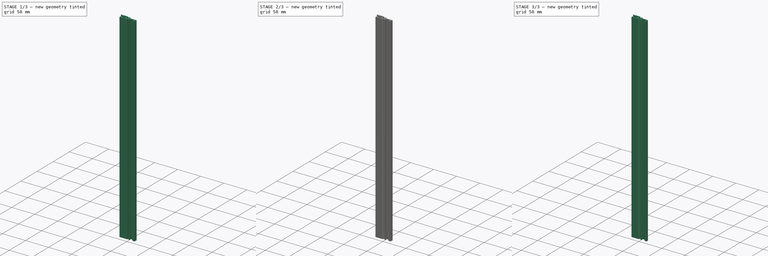
[diagram: build sequence overview — one tinted view per stage of 3, left to right]
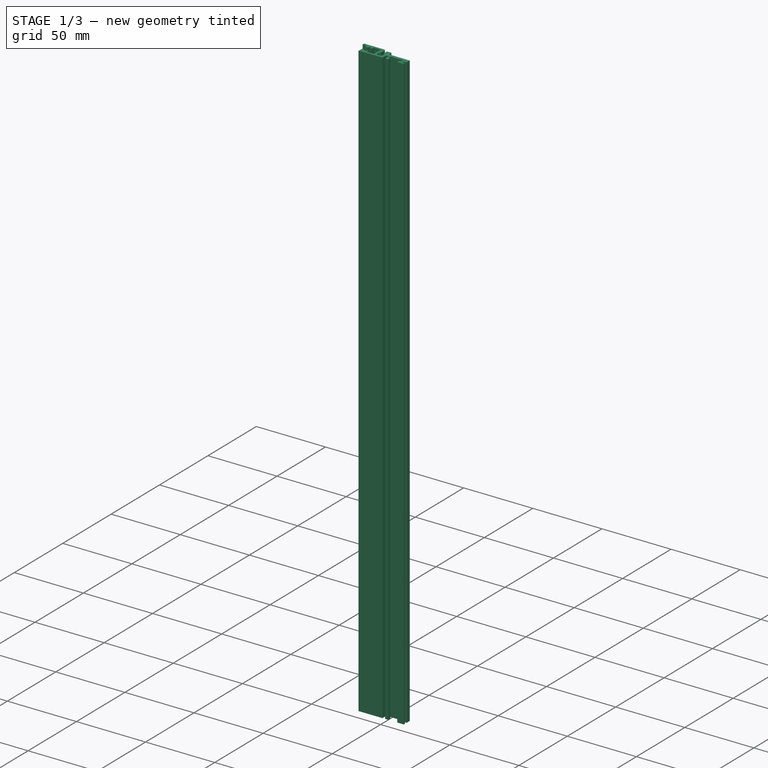
[diagram: stage 1 of 3 — iso view after this stage's code; geometry added in this stage tinted green]
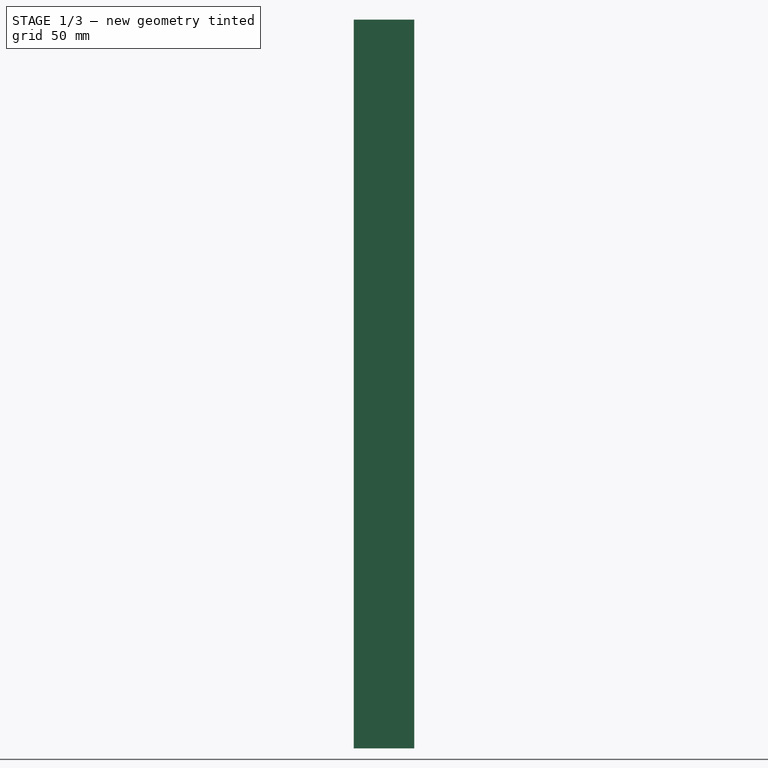
[diagram: stage 1 of 3 — front view after this stage's code; geometry added in this stage tinted green]
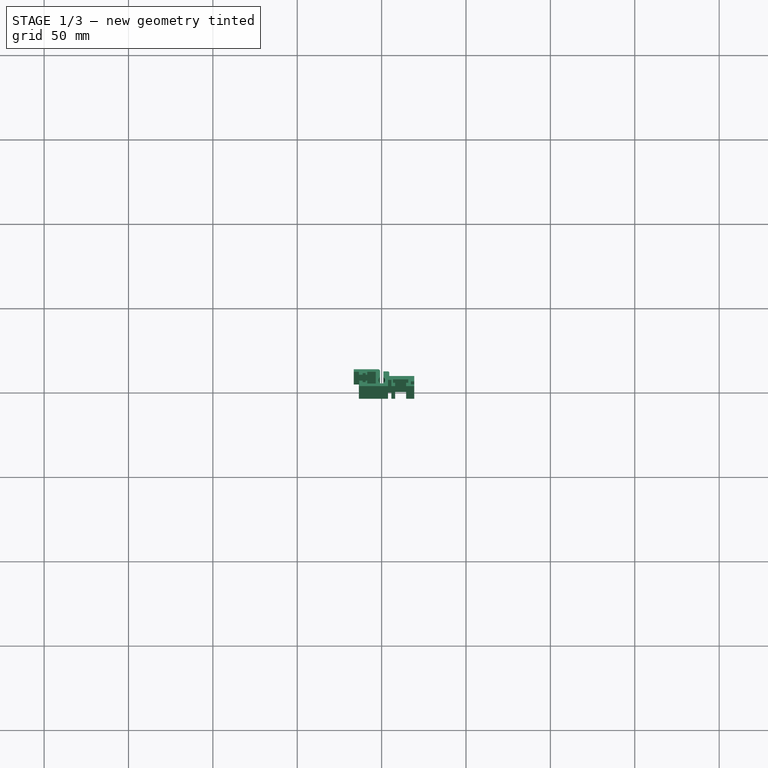
[diagram: stage 1 of 3 — top view after this stage's code; geometry added in this stage tinted green]
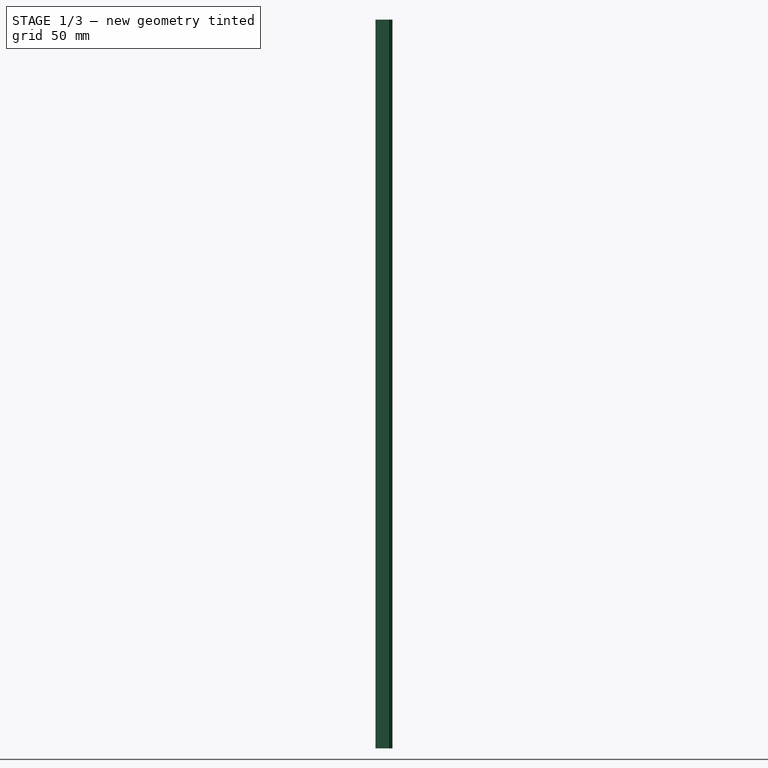
[diagram: stage 1 of 3 — right view after this stage's code; geometry added in this stage tinted green]
FCSTD DOCUMENT  (FreeCAD 0.17R13522 (Git))
Label: FISCHER BGT GB 29L
License: All rights reserved
LicenseURL: http://fr.wikipedia.org/wiki/<copyright redacted>
objects: PartDesign::Fillet×4, PartDesign::Chamfer×3, Sketcher::SketchObject×1, PartDesign::Pad×1, PartDesign::Body×1
note: 11 computed .brp shape members not serialized (recipe doc carries the construction recipe); baked Part::Feature solids carry a one-line shape summary decoded from their .brp

FEATURE [Sketcher::SketchObject] Sketch
  MapMode = 5
  Support = -> [XY_Plane]
  expr: Constraints[133] = (10 - 7) / 2
  sketch-geometry (49):
    g0: LineSegment StartX=-13.5 StartY=-3.5 StartZ=0 EndX=3.75 EndY=-3.5 EndZ=0
    g1: LineSegment StartX=3.75 StartY=-3.5 StartZ=0 EndX=3.75 EndY=0.2 EndZ=0
    g2: LineSegment StartX=3.75 StartY=0.2 StartZ=0 EndX=5.75 EndY=0.2 EndZ=0
    g3: LineSegment StartX=5.75 StartY=0.2 StartZ=0 EndX=5.75 EndY=-3.5 EndZ=0
    g4: LineSegment StartX=5.75 StartY=-3.5 StartZ=0 EndX=8 EndY=-3.5 EndZ=0
    g5: LineSegment StartX=8 StartY=-3.5 StartZ=0 EndX=8 EndY=-1.5 EndZ=0
    g6: LineSegment StartX=8 StartY=-1.5 StartZ=0 EndX=6.75 EndY=-1.5 EndZ=0
    g7: LineSegment StartX=6.75 StartY=-1.5 StartZ=0 EndX=6.75 EndY=0.5 EndZ=0
    g8: LineSegment StartX=6.75 StartY=0.5 StartZ=0 EndX=15.75 EndY=0.5 EndZ=0
    g9: LineSegment StartX=15.75 StartY=0.5 StartZ=0 EndX=15.75 EndY=-1.5 EndZ=0
    g10: LineSegment StartX=15.75 StartY=-1.5 StartZ=0 EndX=14.5 EndY=-1.5 EndZ=0
    g11: LineSegment StartX=14.5 StartY=-1.5 StartZ=0 EndX=14.5 EndY=-3.5 EndZ=0
    g12: LineSegment StartX=14.5 StartY=-3.5 StartZ=0 EndX=19.3 EndY=-3.5 EndZ=0
    g13: LineSegment StartX=19.3 StartY=-3.5 StartZ=0 EndX=19.3 EndY=-2.5 EndZ=0
    g14: LineSegment StartX=19.3 StartY=-2.5 StartZ=0 EndX=17.3 EndY=-2.5 EndZ=0
    g15: LineSegment StartX=17.3 StartY=-2.5 StartZ=0 EndX=17.3 EndY=-0.7 EndZ=0
    g16: LineSegment StartX=17.3 StartY=-0.7 StartZ=0 EndX=19.3 EndY=-0.7 EndZ=0
    g17: LineSegment StartX=19.3 StartY=-0.7 StartZ=0 EndX=19.3 EndY=2.5 EndZ=0
    g18: LineSegment StartX=19.3 StartY=2.5 StartZ=0 EndX=4.5 EndY=2.5 EndZ=0
    g19: LineSegment StartX=4.5 StartY=2.5 StartZ=0 EndX=4.5 EndY=5.25 EndZ=0
    g20: LineSegment StartX=4.5 StartY=5.25 StartZ=0 EndX=1 EndY=5.25 EndZ=0
    g21: LineSegment StartX=1 StartY=5.25 StartZ=0 EndX=1 EndY=1.73205 EndZ=0
    g22: LineSegment StartX=-1 StartY=1.73205 StartZ=0 EndX=-1 EndY=6.5 EndZ=0
    g23: LineSegment StartX=-1 StartY=6.5 StartZ=0 EndX=-16.5 EndY=6.5 EndZ=0
    g24: LineSegment StartX=-16.5 StartY=6.5 StartZ=0 EndX=-16.5 EndY=5 EndZ=0
    g25: LineSegment StartX=-16.5 StartY=5 StartZ=0 EndX=-13.5 EndY=5 EndZ=0
    g26: LineSegment StartX=-13.5 StartY=5 StartZ=0 EndX=-13.5 EndY=3.25 EndZ=0
    g27: LineSegment StartX=-13.5 StartY=3.25 StartZ=0 EndX=-11.3 EndY=3.25 EndZ=0
    g28: LineSegment StartX=-11.3 StartY=3.25 StartZ=0 EndX=-11.3 EndY=4.15 EndZ=0
    g29: LineSegment StartX=-11.3 StartY=4.15 StartZ=0 EndX=-9.5 EndY=4.15 EndZ=0
    g30: LineSegment StartX=-9.5 StartY=4.15 StartZ=0 EndX=-9.5 EndY=3.25 EndZ=0
    g31: LineSegment StartX=-9.5 StartY=3.25 StartZ=0 EndX=-8.5 EndY=3.25 EndZ=0
    g32: LineSegment StartX=-8.5 StartY=3.25 StartZ=0 EndX=-8.5 EndY=5 EndZ=0
    g33: LineSegment StartX=-8.5 StartY=5 StartZ=0 EndX=-3.5 EndY=5 EndZ=0
    g34: LineSegment StartX=-3.5 StartY=5 StartZ=0 EndX=-3.5 EndY=-2 EndZ=0
    g35: LineSegment StartX=-3.5 StartY=-2 StartZ=0 EndX=-8.5 EndY=-2 EndZ=0
    g36: LineSegment StartX=-8.5 StartY=-2 StartZ=0 EndX=-8.5 EndY=-0.25 EndZ=0
    g37: LineSegment StartX=-8.5 StartY=-0.25 StartZ=0 EndX=-9.5 EndY=-0.25 EndZ=0
    g38: LineSegment StartX=-9.5 StartY=-0.25 StartZ=0 EndX=-9.5 EndY=-1.15 EndZ=0
    g39: LineSegment StartX=-9.5 StartY=-1.15 StartZ=0 EndX=-11.3 EndY=-1.15 EndZ=0
    g40: LineSegment StartX=-11.3 StartY=-1.15 StartZ=0 EndX=-11.3 EndY=-0.25 EndZ=0
    g41: LineSegment StartX=-11.3 StartY=-0.25 StartZ=0 EndX=-13.5 EndY=-0.25 EndZ=0
    g42: LineSegment StartX=-13.5 StartY=-0.25 StartZ=0 EndX=-13.5 EndY=-0.45 EndZ=0
    g43: LineSegment StartX=-13.5 StartY=-0.45 StartZ=0 EndX=-13.3 EndY=-0.45 EndZ=0
    g44: LineSegment StartX=-13.3 StartY=-0.45 StartZ=0 EndX=-13.3 EndY=-3.3 EndZ=0
    g45: LineSegment StartX=-13.3 StartY=-3.3 StartZ=0 EndX=-13.5 EndY=-3.3 EndZ=0
    g46: LineSegment StartX=-13.5 StartY=-3.3 StartZ=0 EndX=-13.5 EndY=-3.5 EndZ=0
    g47: ArcOfCircle CenterX=0 CenterY=0 CenterZ=0 NormalX=0 NormalY=0 NormalZ=1 AngleXU=0 Radius=2 StartAngle=2.0944 EndAngle=7.33038
    g48: GeomPoint X=11.25 Y=0.5 Z=0
  constraints (147):
    c: Horizontal(g0)
    c: Coincident(g0,g1)
    c: Vertical(g1)
    c: Coincident(g1,g2)
    c: Coincident(g2,g3)
    c: Coincident(g3,g4)
    c: Horizontal(g4)
    c: Coincident(g4,g5)
    c: Coincident(g5,g6)
    c: Coincident(g6,g7)
    c: Horizontal(g8)
    c: Coincident(g8,g9)
    c: Coincident(g9,g10)
    c: Coincident(g10,g11)
    c: Vertical(g11)
    c: Coincident(g11,g12)
    c: Horizontal(g12)
    c: Coincident(g12,g13)
    c: Vertical(g13)
    c: Coincident(g13,g14)
    c: Horizontal(g14)
    c: Coincident(g14,g15)
    c: Vertical(g15)
    c: Coincident(g15,g16)
    c: Horizontal(g16)
    c: Coincident(g16,g17)
    c: Vertical(g17)
    c: Coincident(g17,g18)
    c: Coincident(g18,g19)
    c: Vertical(g19)
    c: Coincident(g19,g20)
    c: Coincident(g20,g21)
    c: Vertical(g21)
    c: Vertical(g22)
    c: Coincident(g22,g23)
    c: Horizontal(g23)
    c: Coincident(g23,g24)
    c: Vertical(g24)
    c: Coincident(g24,g25)
    c: Coincident(g25,g26)
    c: Vertical(g26)
    c: Coincident(g26,g27)
    c: Coincident(g27,g28)
    c: Coincident(g28,g29)
    c: Coincident(g29,g30)
    c: Vertical(g30)
    c: Coincident(g30,g31)
    c: Coincident(g31,g32)
    c: Vertical(g32)
    c: Coincident(g32,g33)
    c: Horizontal(g33)
    c: Coincident(g33,g34)
    c: Vertical(g34)
    c: Coincident(g34,g35)
    c: Horizontal(g35)
    c: Coincident(g35,g36)
    c: Coincident(g36,g37)
    c: Coincident(g37,g38)
    c: Coincident(g38,g39)
    c: Horizontal(g39)
    c: Coincident(g39,g40)
    c: Coincident(g40,g41)
    c: Horizontal(g41)
    c: Coincident(g41,g42)
    c: Vertical(g42)
    c: Coincident(g42,g43)
    c: Coincident(g43,g44)
    c: Vertical(g44)
    c: Coincident(g44,g45)
    c: Coincident(g45,g46)
    c: Coincident(g46,g0)
    c: Vertical(g46)
    c: Horizontal(g31)
    c: Horizontal(g37)
    c: Horizontal(g25)
    c: Horizontal(g27)
    c: Vertical(g36)
    c: Vertical(g38)
    c: Horizontal(g43)
    c: Horizontal(g45)
    c: Horizontal(g29)
    c: Horizontal(g20)
    c: Horizontal(g2)
    c: Horizontal(g6)
    c: Horizontal(g18)
    c: Vertical(g3)
    c: Vertical(g7)
    c: Vertical(g9)
    c: Vertical(g5)
    c: Horizontal(g10)
    c: Coincident(g21,g47)
    c: Radius(g47) = 2
    c: Vertical(g40)
    c: DistanceY(g13,g13) = 1
    c: DistanceY(g15,g15) = 1.8
    c: DistanceX(g5,g10) = 6.5
    c: DistanceX(g39,g39) = 1.8
    c: Vertical(g28)
    c: DistanceY(g39,g28) = 5.3
    c: DistanceY(g0,g23) = 10
    c: Coincident(g22,g47)
    c: DistanceY(g12,g17) = 6
    c: DistanceX(g14,g14) = 2
    c: DistanceX(g23,g17) = 35.8
    c: DistanceY(g12,g19) = 8.75
    c: DistanceX(g23,g47) = 16.5
    c: Horizontal(g21,g22)
    c: Vertical(g26,g41)
    c: Vertical(g27,g40)
    c: Vertical(g42,g45)
    c: DistanceX(g8,g8) = 9
    c: Vertical(g13,g16)
    c: DistanceX(g25,g25) = 3
    c: Equal(g28,g40)
    c: Equal(g30,g38)
    c: PointOnObject(g48,g8)
    c: Symmetric(g8,g8,g48)
    c: Equal(g10,g6)
    c: Horizontal(g5,g10)
    c: Horizontal(g11,g4)
    c: DistanceX(g47,g48) = 11.25
    c: Horizontal(g3,g0)
    c: DistanceY(g34,g34) = 7
    c: Vertical(g36,g31)
    c: DistanceX(g41,g41) = 2.2
    c: DistanceY(g41,g26) = 3.5
    c: Horizontal(g30,g27)
    c: Equal(g29,g39)
    c: DistanceX(g22,g21) = 2
    c: DistanceX(g43,g43) = 0.2
    c: Equal(g43,g45)
    c: Equal(g46,g42)
    c: Equal(g32,g36)
    c: DistanceY(g32,g23) = 1.5
    c: DistanceY(g24,g24) = 1.5
    c: DistanceX(g37,g37) = 1
    c: DistanceX(g33,g33) = 5
    c: DistanceX(g18,g18) = 14.8
    c: DistanceX(g2,g7) = 1
    c: DistanceX(g2,g2) = 2
    c: DistanceY(g47,g22) = 6.5
    c: Coincident(g47,g-1)
    c: DistanceY(g11,g11) = 2
    c: DistanceY(g1,g1) = 3.7
    c: DistanceY(g42,g42) = 0.2
    c: DistanceY(g4,g7) = 4
    c: Coincident(g7,g8)
FEATURE [PartDesign::Pad] Pad
  Length = 431.8
  Length2 = 100
  Profile = -> Sketch
  Type = 0
FEATURE [PartDesign::Fillet] Fillet
  Base = -> Pad [Edge2]
  BaseFeature = -> Pad
  Radius = 1
FEATURE [PartDesign::Chamfer] Chamfer
  Base = -> Fillet [Edge106]
  BaseFeature = -> Fillet
  Size = 0.5
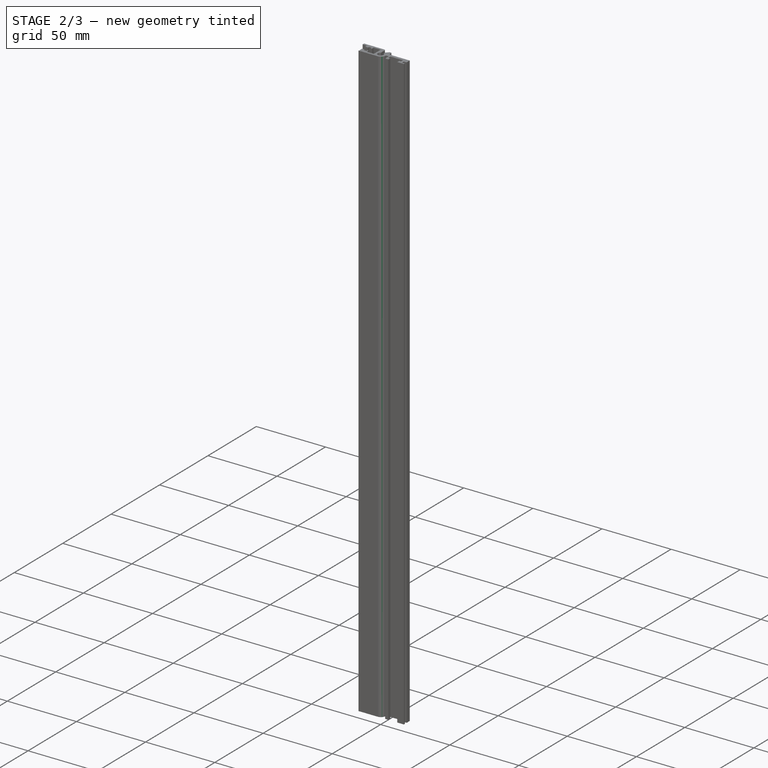
[diagram: stage 2 of 3 — iso view after this stage's code; geometry added in this stage tinted green]
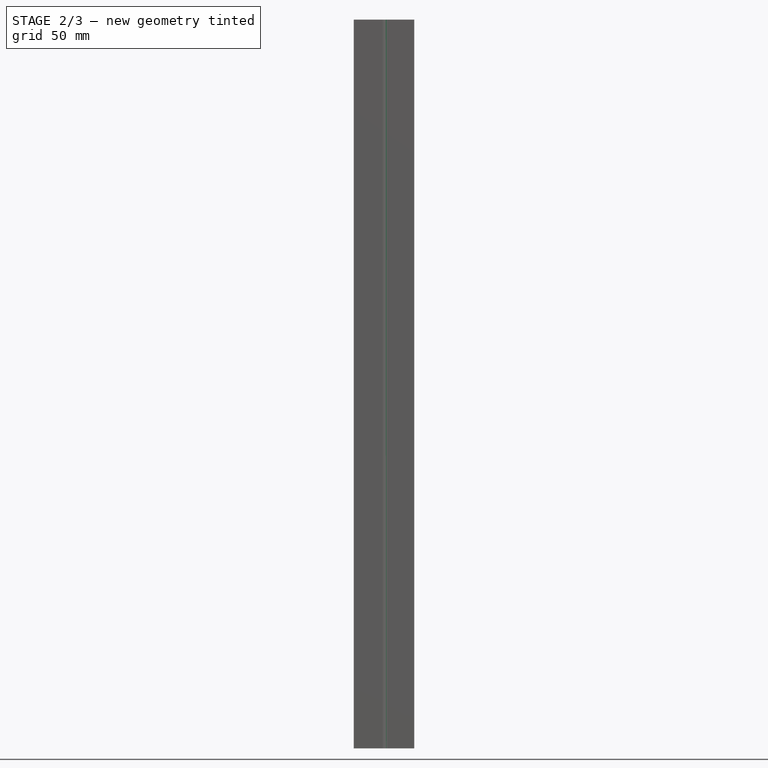
[diagram: stage 2 of 3 — front view after this stage's code; geometry added in this stage tinted green]
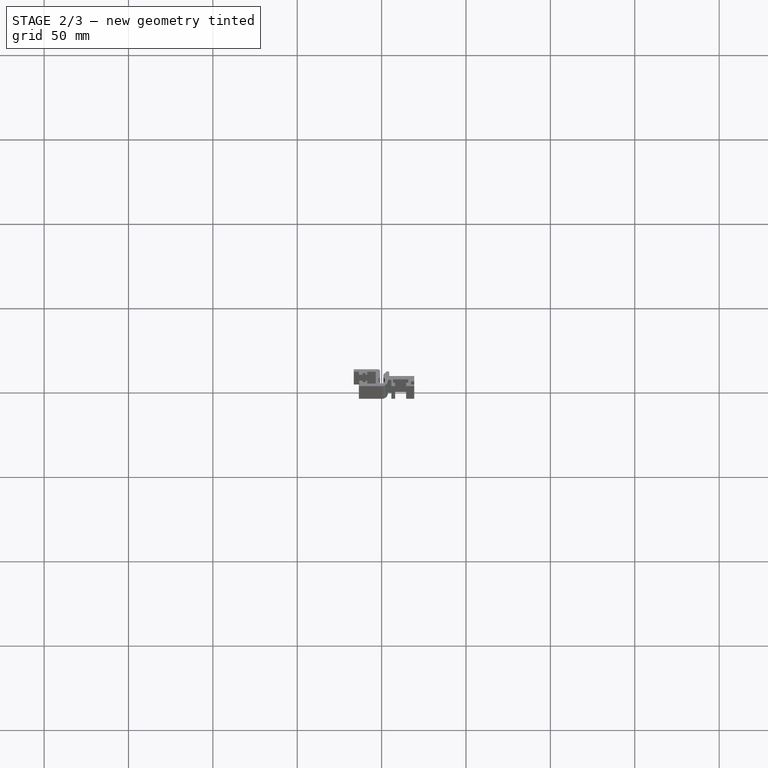
[diagram: stage 2 of 3 — top view after this stage's code; geometry added in this stage tinted green]
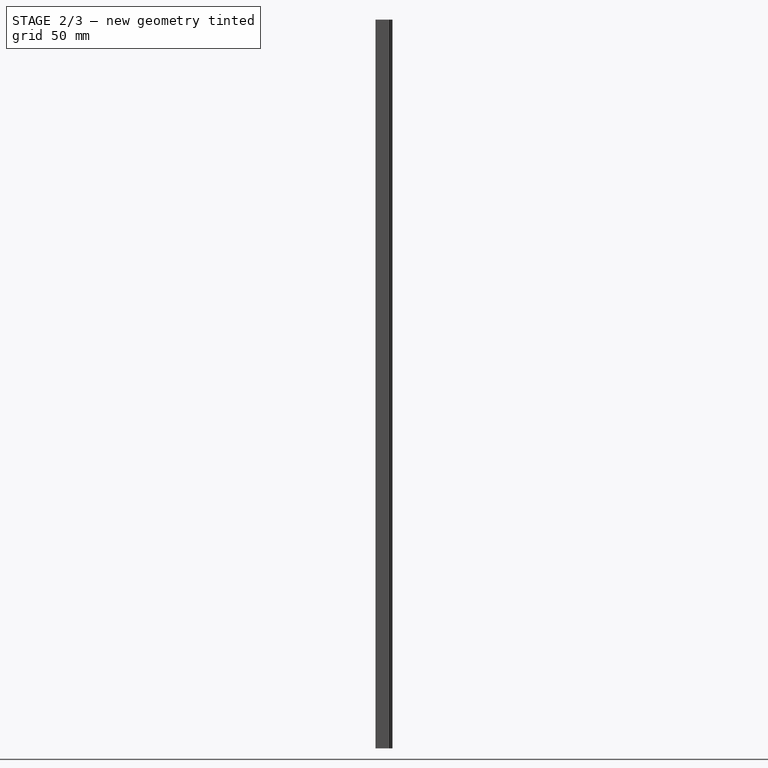
[diagram: stage 2 of 3 — right view after this stage's code; geometry added in this stage tinted green]
FEATURE [PartDesign::Chamfer] Chamfer001
  Base = -> Chamfer [Edge52]
  BaseFeature = -> Chamfer
  Size = 2
FEATURE [PartDesign::Fillet] Fillet001
  Base = -> Chamfer001 [Edge133]
  BaseFeature = -> Chamfer001
  Radius = 3.5
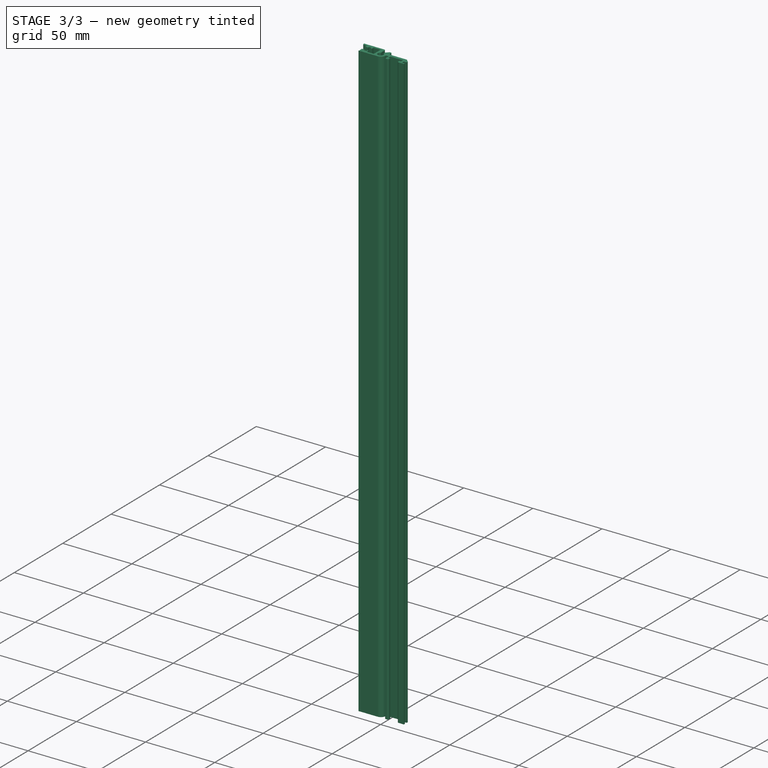
[diagram: stage 3 of 3 — iso view after this stage's code; geometry added in this stage tinted green]
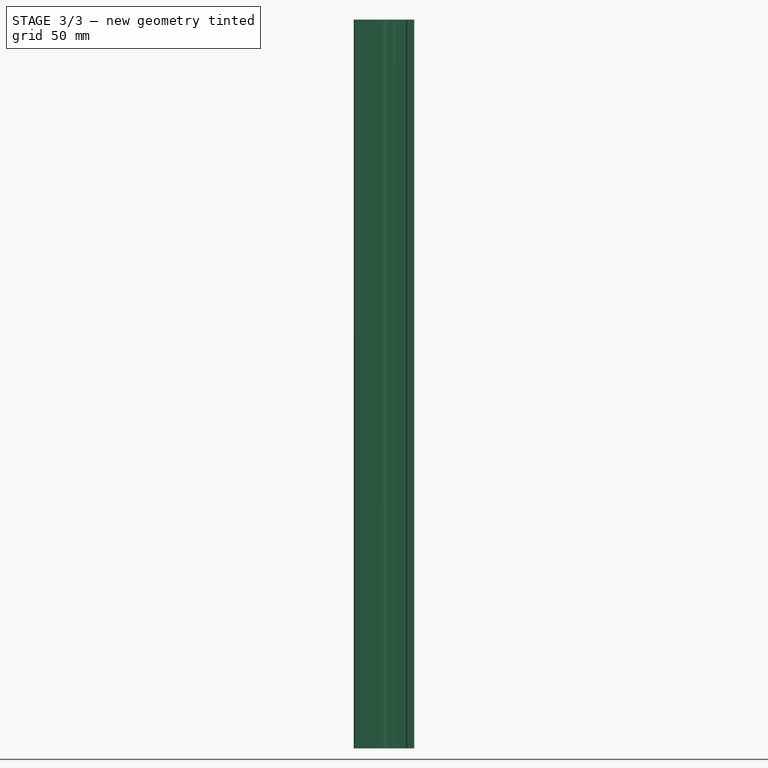
[diagram: stage 3 of 3 — front view after this stage's code; geometry added in this stage tinted green]
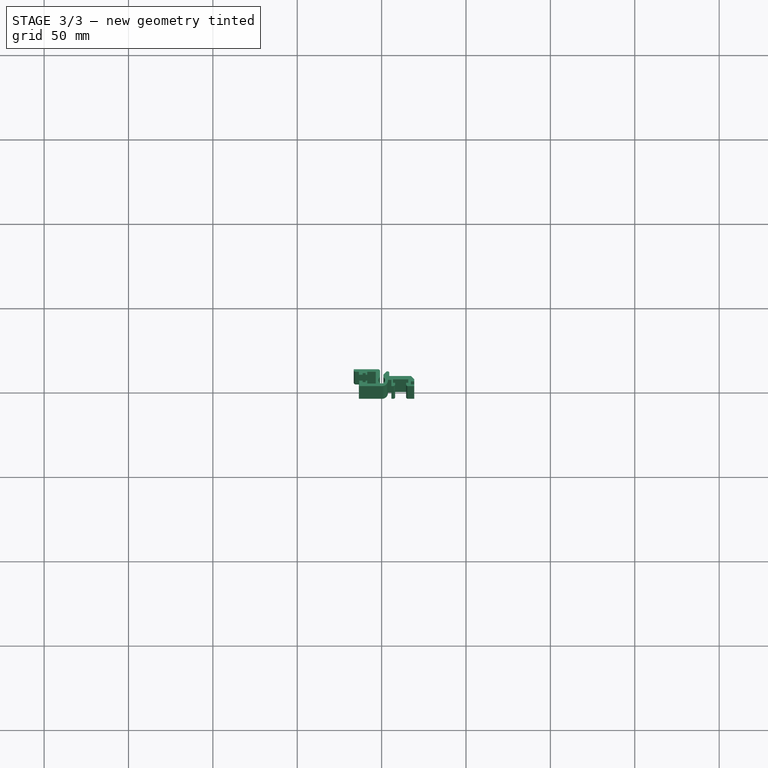
[diagram: stage 3 of 3 — top view after this stage's code; geometry added in this stage tinted green]
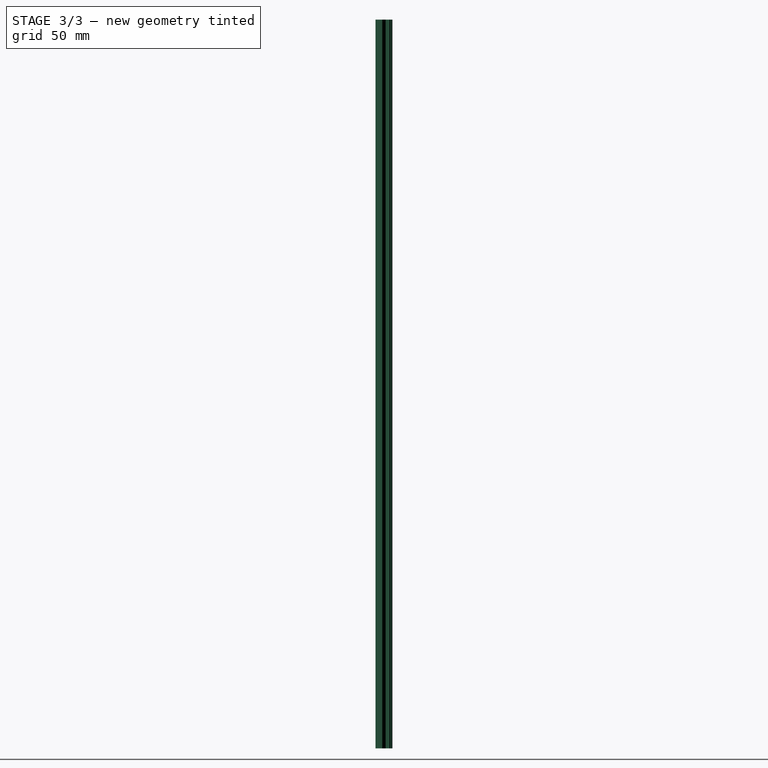
[diagram: stage 3 of 3 — right view after this stage's code; geometry added in this stage tinted green]
FEATURE [PartDesign::Fillet] Fillet002
  Base = -> Fillet001 [Edge66,Edge94]
  BaseFeature = -> Fillet001
  Radius = 1
FEATURE [PartDesign::Chamfer] Chamfer002
  Base = -> Fillet002 [Edge114]
  BaseFeature = -> Fillet002
  Size = 2
FEATURE [PartDesign::Fillet] Fillet003
  Base = -> Chamfer002 [Edge103]
  BaseFeature = -> Chamfer002
  Radius = 1
FEATURE [PartDesign::Body] Body
  Group = -> [Sketch,Pad,Fillet,Chamfer,Chamfer001,Fillet001,Fillet002,Chamfer002,Fillet003]
  Origin = -> Origin
  Tip = -> Fillet003
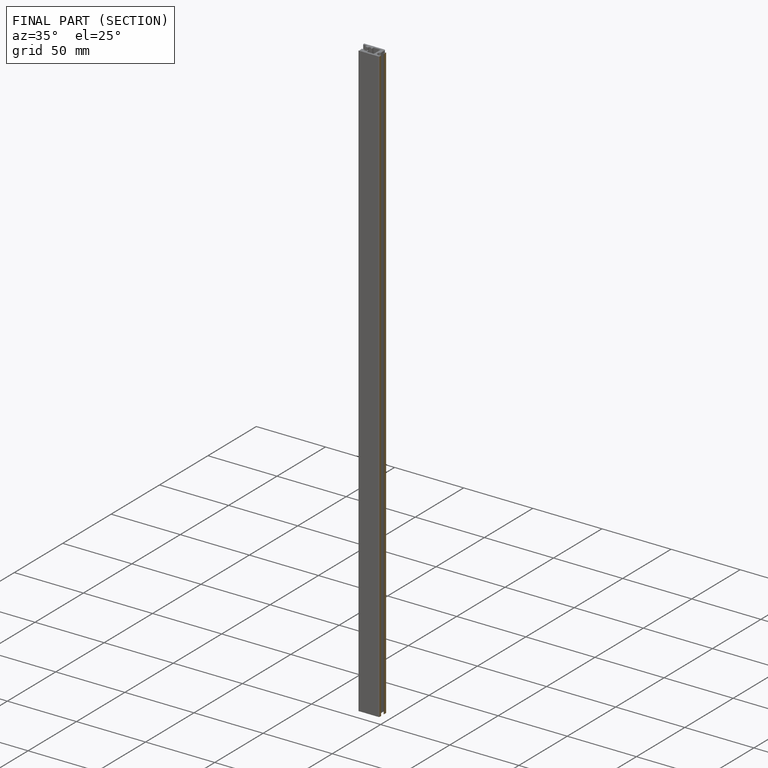
[diagram: finished part — half-section view (interior)]
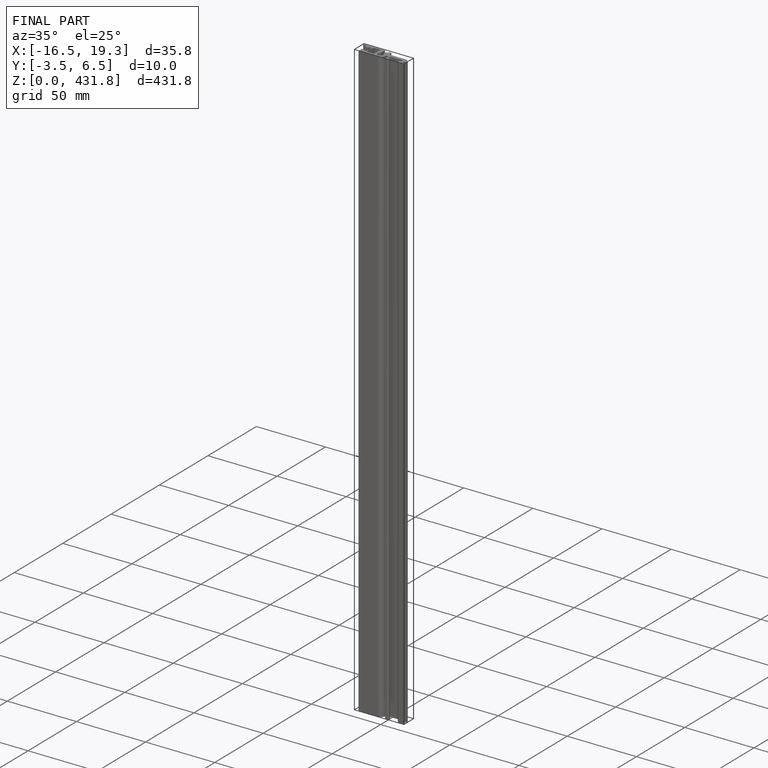
[diagram: finished part — iso view with bounding-box wireframe]
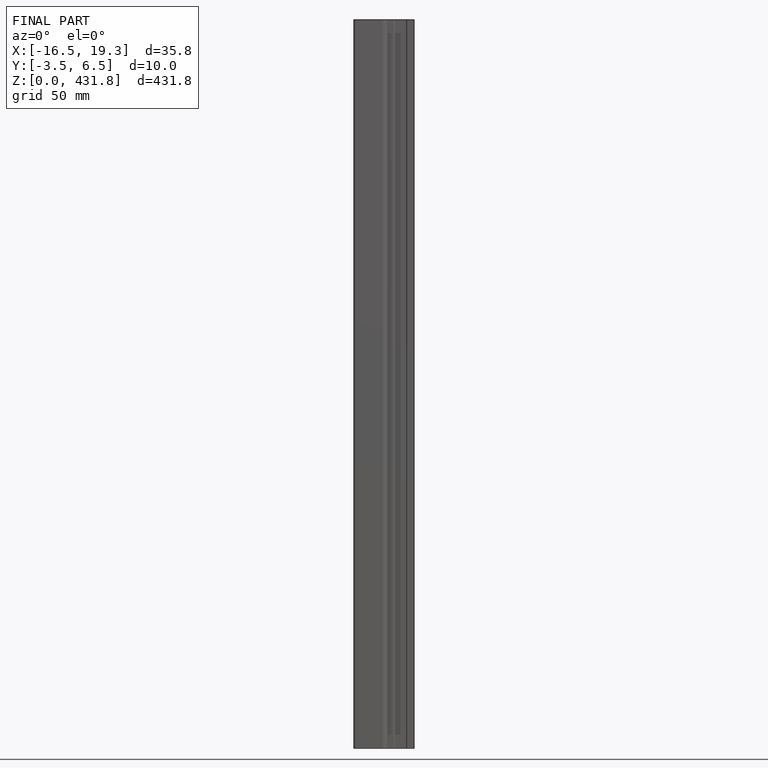
[diagram: finished part — front view with bounding-box wireframe]
